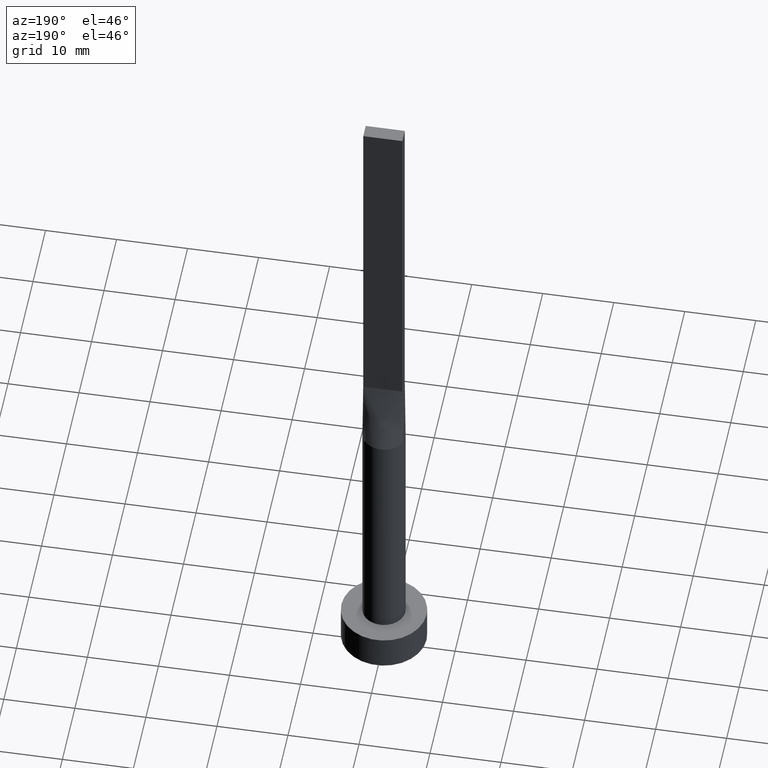
[diagram: clean part render]
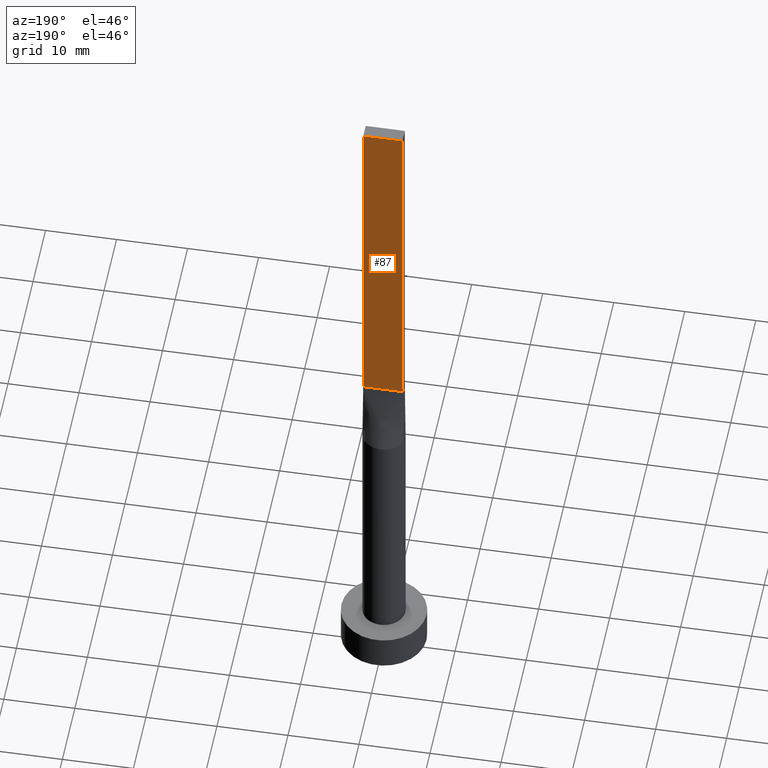
[diagram: same view with one face highlighted and labeled with its STEP entity id]
A machine part, auxiliary view. The second image highlights one B-rep face of the part: STEP entity #87.
In plain terms, the highlighted planar face has unit normal (0, -1, 0).
Its self-contained STEP definition (entity closure, byte-faithful):
#1 = VECTOR ( 'NONE', #337, 1000.000000000000000 ) ;
#6 = EDGE_CURVE ( 'NONE', #541, #555, #210, .T. ) ;
#17 = ORIENTED_EDGE ( 'NONE', *, *, #383, .T. ) ;
#36 = DIRECTION ( 'NONE',  ( -1.000000000000000000, -0.000000000000000000, -0.000000000000000000 ) ) ;
#48 = VECTOR ( 'NONE', #213, 1000.000000000000000 ) ;
#63 = LINE ( 'NONE', #71, #48 ) ;
#71 = CARTESIAN_POINT ( 'NONE',  ( -2.749999999999999556, 1.000000000000000000, 100.0000000000000000 ) ) ;
#87 = ADVANCED_FACE ( 'NONE', ( #362 ), #142, .F. ) ;
#126 = AXIS2_PLACEMENT_3D ( 'NONE', #205, #453, #314 ) ;
#130 = CARTESIAN_POINT ( 'NONE',  ( -2.749999999999999556, 1.000000000000000000, 50.00000000000000000 ) ) ;
#141 = VECTOR ( 'NONE', #429, 1000.000000000000000 ) ;
#142 = PLANE ( 'NONE',  #126 ) ;
#161 = LINE ( 'NONE', #130, #581 ) ;
#164 = VERTEX_POINT ( 'NONE', #334 ) ;
#205 = CARTESIAN_POINT ( 'NONE',  ( 2.749999999999999556, 1.000000000000000000, 100.0000000000000000 ) ) ;
#210 = LINE ( 'NONE', #515, #141 ) ;
#213 = DIRECTION ( 'NONE',  ( -0.000000000000000000, -0.000000000000000000, -1.000000000000000000 ) ) ;
#222 = CARTESIAN_POINT ( 'NONE',  ( -2.749999999999999556, 1.000000000000000000, 50.00000000000000000 ) ) ;
#227 = CARTESIAN_POINT ( 'NONE',  ( 2.749999999999999556, 1.000000000000000000, 100.0000000000000000 ) ) ;
#262 = EDGE_CURVE ( 'NONE', #555, #392, #63, .T. ) ;
#314 = DIRECTION ( 'NONE',  ( 0.000000000000000000, -0.000000000000000000, -1.000000000000000000 ) ) ;
#334 = CARTESIAN_POINT ( 'NONE',  ( 2.749999999999999556, 1.000000000000000000, 50.00000000000000000 ) ) ;
#337 = DIRECTION ( 'NONE',  ( -0.000000000000000000, -0.000000000000000000, -1.000000000000000000 ) ) ;
#346 = EDGE_CURVE ( 'NONE', #164, #392, #161, .T. ) ;
#360 = CARTESIAN_POINT ( 'NONE',  ( 2.749999999999999556, 1.000000000000000000, 100.0000000000000000 ) ) ;
#362 = FACE_OUTER_BOUND ( 'NONE', #458, .T. ) ;
#383 = EDGE_CURVE ( 'NONE', #541, #164, #436, .T. ) ;
#392 = VERTEX_POINT ( 'NONE', #222 ) ;
#396 = CARTESIAN_POINT ( 'NONE',  ( -2.749999999999999556, 1.000000000000000000, 100.0000000000000000 ) ) ;
#429 = DIRECTION ( 'NONE',  ( -1.000000000000000000, 0.000000000000000000, 0.000000000000000000 ) ) ;
#436 = LINE ( 'NONE', #227, #1 ) ;
#453 = DIRECTION ( 'NONE',  ( 0.000000000000000000, -1.000000000000000000, 0.000000000000000000 ) ) ;
#455 = ORIENTED_EDGE ( 'NONE', *, *, #6, .F. ) ;
#458 = EDGE_LOOP ( 'NONE', ( #513, #530, #455, #17 ) ) ;
#513 = ORIENTED_EDGE ( 'NONE', *, *, #346, .T. ) ;
#515 = CARTESIAN_POINT ( 'NONE',  ( 2.749999999999999556, 1.000000000000000000, 100.0000000000000000 ) ) ;
#530 = ORIENTED_EDGE ( 'NONE', *, *, #262, .F. ) ;
#541 = VERTEX_POINT ( 'NONE', #360 ) ;
#555 = VERTEX_POINT ( 'NONE', #396 ) ;
#581 = VECTOR ( 'NONE', #36, 1000.000000000000000 ) ;